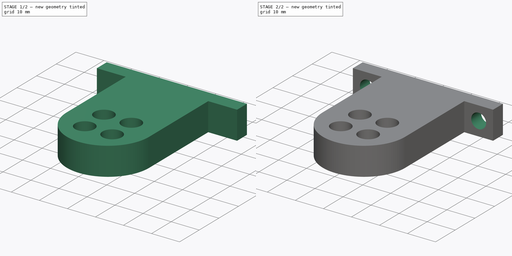
[diagram: build sequence overview — one tinted view per stage of 2, left to right]
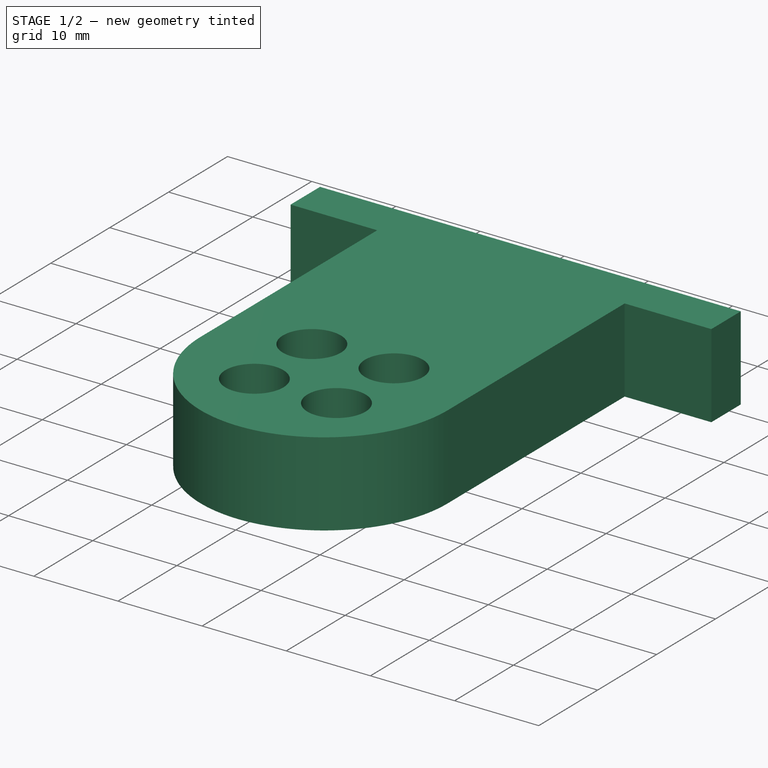
[diagram: stage 1 of 2 — iso view after this stage's code; geometry added in this stage tinted green]
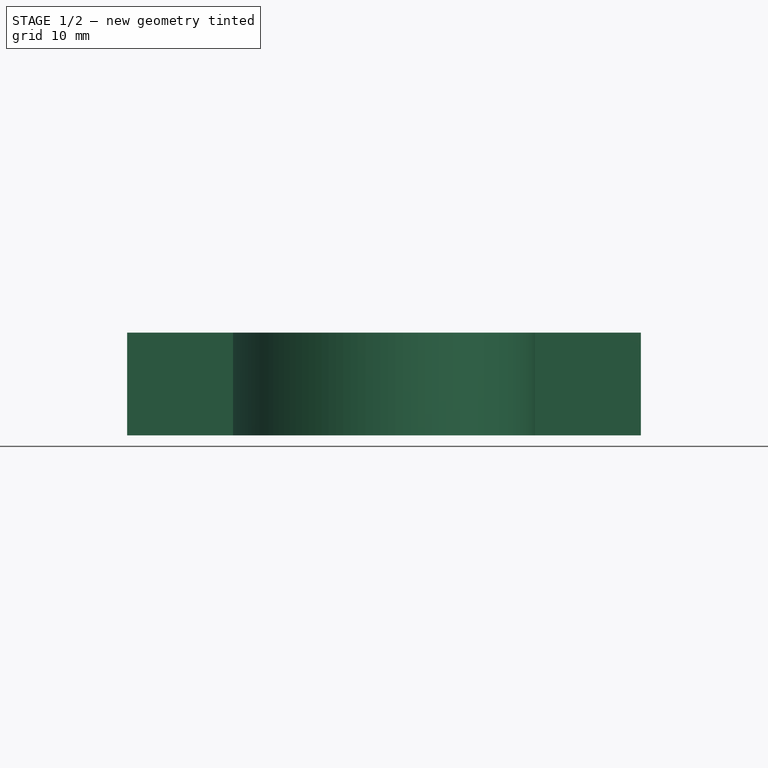
[diagram: stage 1 of 2 — front view after this stage's code; geometry added in this stage tinted green]
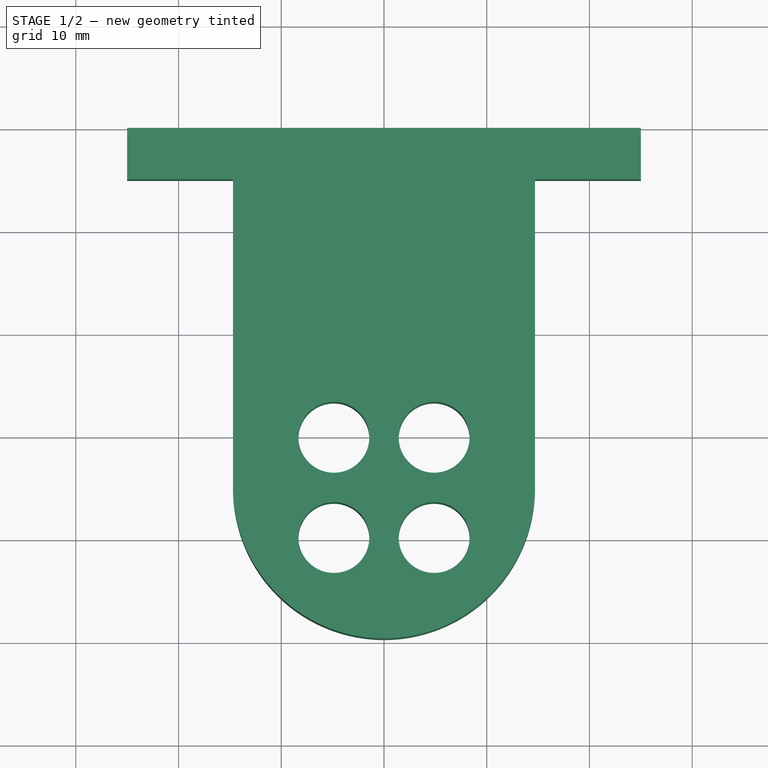
[diagram: stage 1 of 2 — top view after this stage's code; geometry added in this stage tinted green]
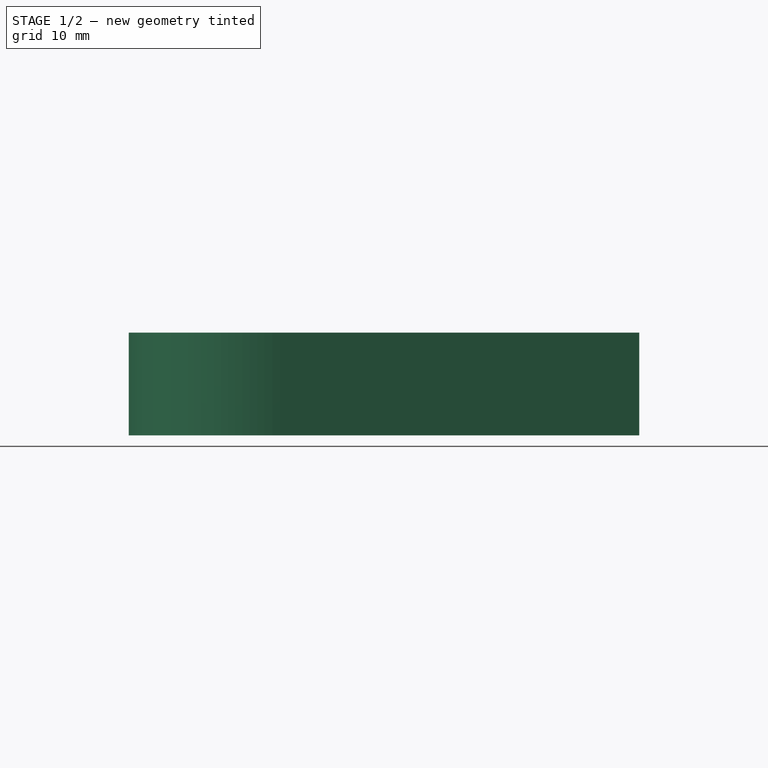
[diagram: stage 1 of 2 — right view after this stage's code; geometry added in this stage tinted green]
FCSTD DOCUMENT  (FreeCAD 1.0R39109 (Git))
Label: Tube holder
License: All rights reserved
LicenseURL: http://en.wikipedia.org/wiki/All_rights_reserved
objects: Sketcher::SketchObject×2, PartDesign::Pad×1, Spreadsheet::Sheet×1, PartDesign::Hole×1, PartDesign::Body×1
note: 11 computed .brp shape members not serialized (recipe doc carries the construction recipe); baked Part::Feature solids carry a one-line shape summary decoded from their .brp

FEATURE [Sketcher::SketchObject] Sketch
  ArcFitTolerance = 0
  AttachmentSupport = -> [XY_Plane]
  FullyConstrained = true
  MakeInternals = false
  MapMode = 5
  expr: .Constraints.mountingwidth = 5
  expr: .Constraints.width = .Constraints.widthtubepart + 5.3 mm * 2 + 10 mm
  sketch-geometry (18):
    g0: ArcOfCircle CenterX=4e-16 CenterY=-35 CenterZ=0 NormalX=0 NormalY=0 NormalZ=1 AngleXU=0 Radius=14.7 StartAngle=3.14159 EndAngle=6.28319
    g1: LineSegment StartX=14.7 StartY=-35 StartZ=0 EndX=14.7 EndY=-5 EndZ=0
    g2: LineSegment StartX=-14.7 StartY=-5 StartZ=0 EndX=-14.7 EndY=-35 EndZ=0
    g3: LineSegment StartX=-25 StartY=2e-16 StartZ=0 EndX=-25 EndY=-5 EndZ=0
    g4: LineSegment StartX=-25 StartY=-5 StartZ=0 EndX=-14.7 EndY=-5 EndZ=0
    g5: LineSegment StartX=25 StartY=-2e-16 StartZ=0 EndX=25 EndY=-5 EndZ=0
    g6: LineSegment StartX=25 StartY=-5 StartZ=0 EndX=14.7 EndY=-5 EndZ=0
    g7: LineSegment [constr] StartX=-4.87904 StartY=-39.879 StartZ=0 EndX=-4.87904 EndY=-30.121 EndZ=0
    g8: LineSegment [constr] StartX=-4.87904 StartY=-30.121 StartZ=0 EndX=4.87904 EndY=-30.121 EndZ=0
    g9: LineSegment [constr] StartX=4.87904 StartY=-30.121 StartZ=0 EndX=4.87904 EndY=-39.879 EndZ=0
    g10: LineSegment [constr] StartX=4.87904 StartY=-39.879 StartZ=0 EndX=-4.87904 EndY=-39.879 EndZ=0
    g11: GeomPoint X=4e-16 Y=-35 Z=0
    g12: Circle CenterX=-4.87904 CenterY=-30.121 CenterZ=0 NormalX=0 NormalY=0 NormalZ=1 AngleXU=0 Radius=3.45
    g13: Circle CenterX=4.87904 CenterY=-30.121 CenterZ=0 NormalX=0 NormalY=0 NormalZ=1 AngleXU=0 Radius=3.45
    g14: Circle CenterX=4.87904 CenterY=-39.879 CenterZ=0 NormalX=0 NormalY=0 NormalZ=1 AngleXU=0 Radius=3.45
    g15: Circle CenterX=-4.87904 CenterY=-39.879 CenterZ=0 NormalX=0 NormalY=0 NormalZ=1 AngleXU=0 Radius=3.45
    g16: Circle [constr] CenterX=4e-16 CenterY=-35 CenterZ=0 NormalX=0 NormalY=0 NormalZ=1 AngleXU=0 Radius=3.45
    g17: LineSegment StartX=-25 StartY=2e-16 StartZ=0 EndX=25 EndY=-2e-16 EndZ=0
  constraints (46):
    c: Tangent(g0,g1) = -1.5708
    c: Tangent(g2,g0) = -1.5708
    c: Vertical(g1)
    c: Coincident(g3,g4)
    c: Horizontal(g4)
    c: Vertical(g3)
    c: Coincident(g5,g6)
    c: Horizontal(g6)
    c: Vertical(g5)
    c: PointOnObject(g2,g4)
    c: PointOnObject(g1,g6)
    c: Equal(g5,g3)
    c: Equal(g4,g6)
    c: DistanceY(g5,g5) = 5  'mountingwidth'
    c: PointOnObject(g6,g1)
    c: PointOnObject(g4,g2)
    c: DistanceX(g3,g5) = 50  'width'
    c: Vertical(g2)
    c: Symmetric(g2,g1,g-2)
    c: Coincident(g7,g8)
    c: Coincident(g8,g9)
    c: Coincident(g9,g10)
    c: Coincident(g10,g7)
    c: Horizontal(g8)
    c: Horizontal(g10)
    c: Vertical(g7)
    c: Vertical(g9)
    c: Symmetric(g8,g7,g11)
    c: Equal(g7,g8)
    c: Coincident(g12,g7)
    c: Coincident(g13,g8)
    c: Coincident(g14,g9)
    c: Coincident(g15,g7)
    c: Equal(g15,g12)
    c: Equal(g12,g13)
    c: Equal(g13,g14)
    c: Diameter(g12) = 6.9
    c: Coincident(g16,g11)
    c: Tangent(g16,g13)
    c: Equal(g16,g13)
    c: Coincident(g11,g0)
    c: DistanceY(g0,g-1) = 35
    c: DistanceX(g2,g6) = 29.4  'widthtubepart'
    c: Coincident(g17,g3)
    c: Coincident(g17,g5)
    c: PointOnObject(g-1,g17)
FEATURE [PartDesign::Pad] Pad
  Direction = (0,0,1)
  Length = 10
  Length2 = 10
  Midplane = true
  Profile = -> Sketch
  ReferenceAxis = -> Sketch [N_Axis]
  Suppressed = false
  Type = 0
  expr: Length = Spreadsheet.Thickness
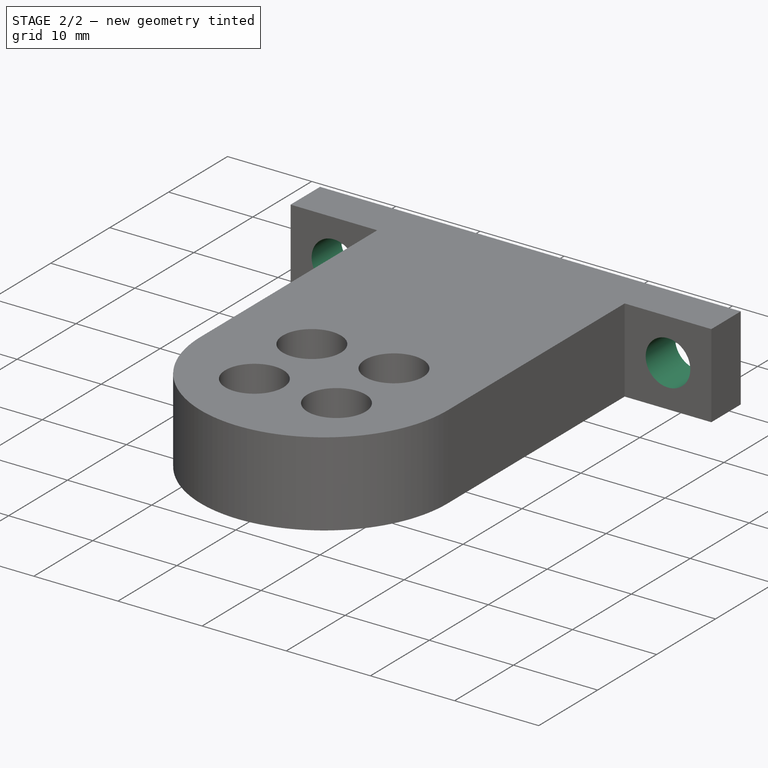
[diagram: stage 2 of 2 — iso view after this stage's code; geometry added in this stage tinted green]
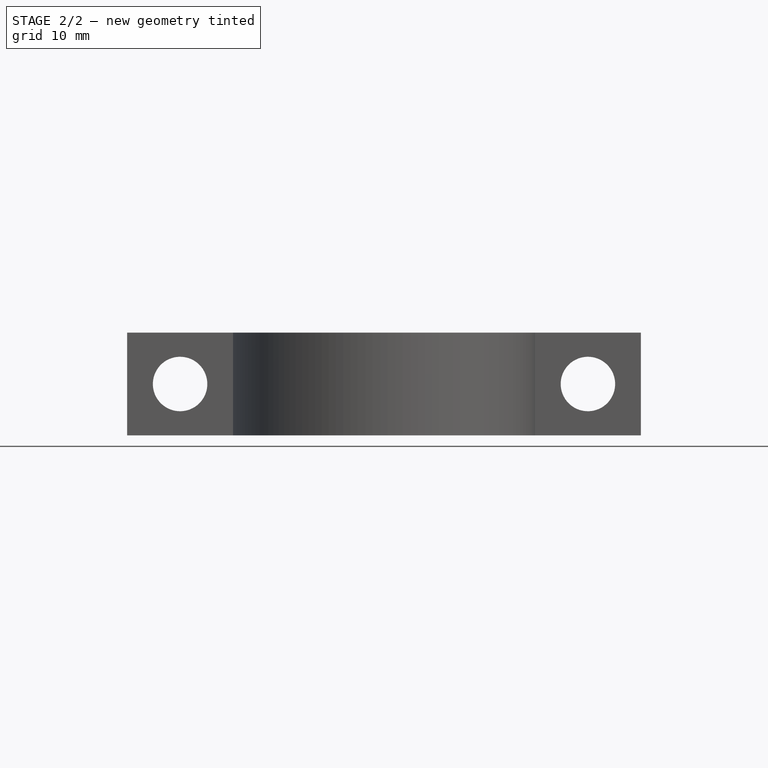
[diagram: stage 2 of 2 — front view after this stage's code; geometry added in this stage tinted green]
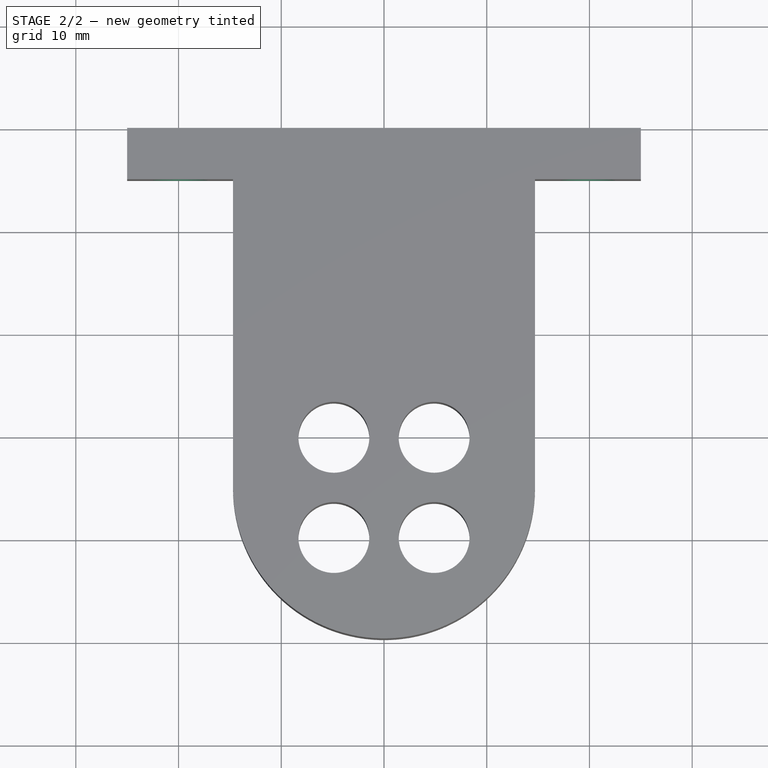
[diagram: stage 2 of 2 — top view after this stage's code; geometry added in this stage tinted green]
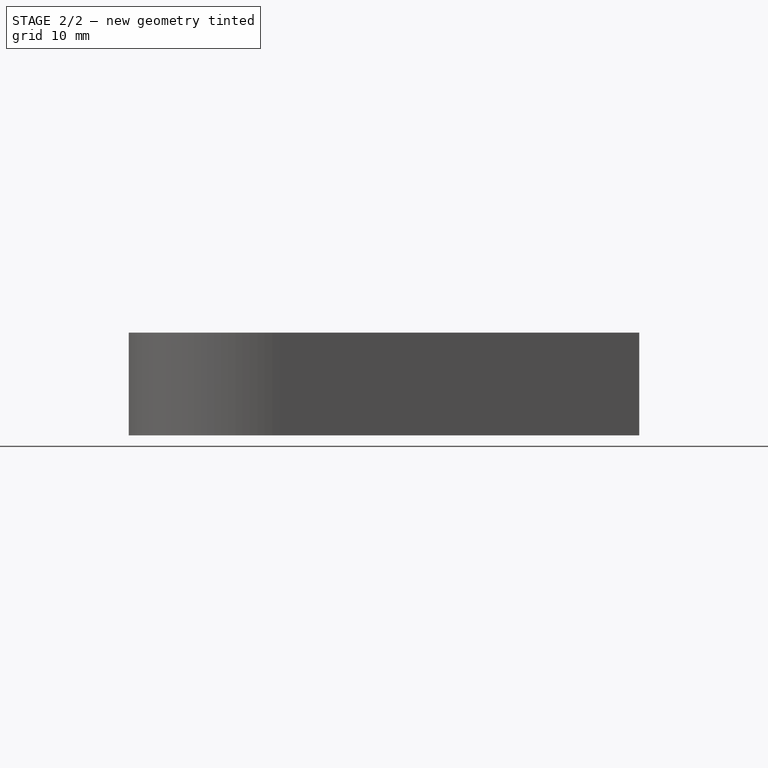
[diagram: stage 2 of 2 — right view after this stage's code; geometry added in this stage tinted green]
FEATURE [Spreadsheet::Sheet] Spreadsheet
  cells = A1='ClampWidth; B1(ClampWidth)=50; A2='Walls; B2(Walls)=3; A3='Thickness; B3(Thickness)=10; A4='CircleInner; B4(CircleInner)=25
FEATURE [Sketcher::SketchObject] Sketch001
  ArcFitTolerance = 1e-06
  AttachmentOffset = pos=(0,0,5) rot=(0,0,1;0rad)
  AttachmentSupport = -> [XZ_Plane]
  FullyConstrained = false
  MakeInternals = false
  MapMode = 5
  Placement = pos=(0,-5,1.1e-15) rot=(1,0,0;1.5708rad)
  expr: .AttachmentOffset.Base.z = Sketch.Constraints.mountingwidth
  expr: Constraints[1] = Sketch.Constraints.widthtubepart + (Sketch.Constraints.width - Sketch.Constraints.widthtubepart) / 2
  sketch-geometry (2):
    g0: Circle CenterX=-19.85 CenterY=0 CenterZ=0 NormalX=0 NormalY=0 NormalZ=1 AngleXU=0 Radius=3.67838
    g1: Circle CenterX=19.85 CenterY=0 CenterZ=0 NormalX=0 NormalY=0 NormalZ=1 AngleXU=0 Radius=3.53993
  constraints (3):
    c: Symmetric(g1,g0,g-2)
    c: DistanceX(g0,g1) = 39.7
    c: PointOnObject(g1,g-1)
FEATURE [PartDesign::Hole] Hole
  BaseFeature = -> Pad
  CustomThreadClearance = 0
  Depth = 140.767
  DepthType = 1
  Diameter = 5.3
  DrillForDepth = false
  DrillPoint = 1
  DrillPointAngle = 118
  HoleCutCountersinkAngle = 90
  HoleCutCustomValues = false
  HoleCutDepth = 0
  HoleCutDiameter = 6.1
  HoleCutType = 0
  ModelThread = false
  Profile = -> Sketch001
  Refine = true
  Suppressed = false
  Tapered = false
  TaperedAngle = 90
  ThreadClass = 0
  ThreadDepth = 140.767
  ThreadDepthType = 0
  ThreadDirection = 0
  ThreadFit = 0
  ThreadSize = 0
  ThreadType = 0
  Threaded = false
  UseCustomThreadClearance = false
FEATURE [PartDesign::Body] Body  label="Body 1"
  AllowCompound = false
  Group = -> [Sketch,Pad,Sketch001,Hole]
  Origin = -> Origin
  Tip = -> Hole
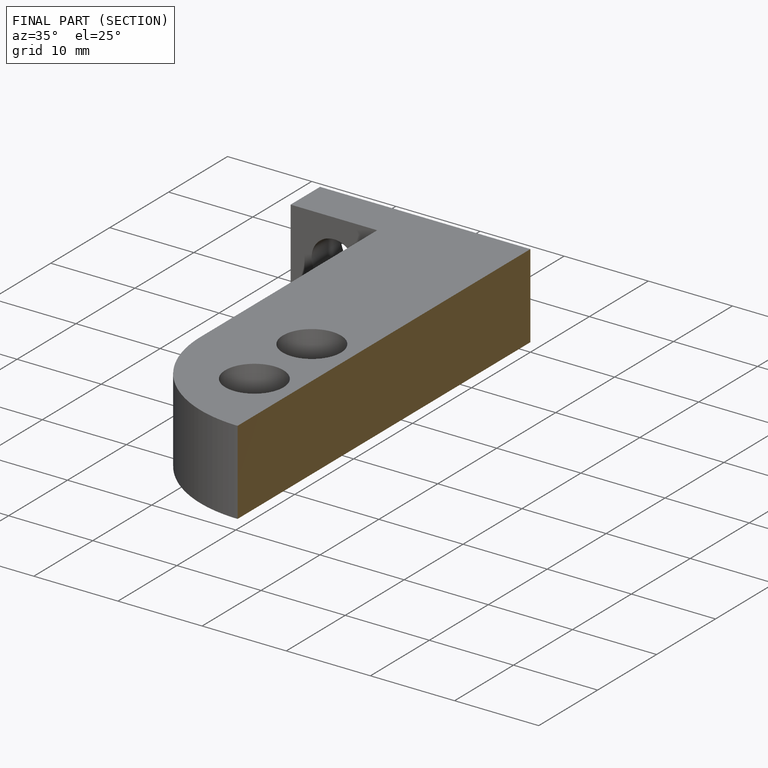
[diagram: finished part — half-section view (interior)]
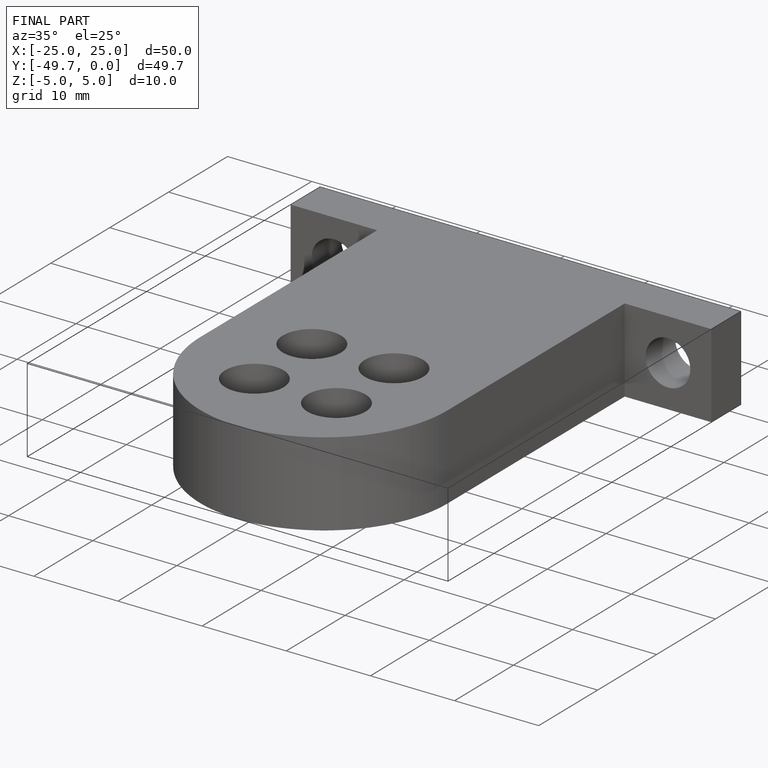
[diagram: finished part — iso view with bounding-box wireframe]
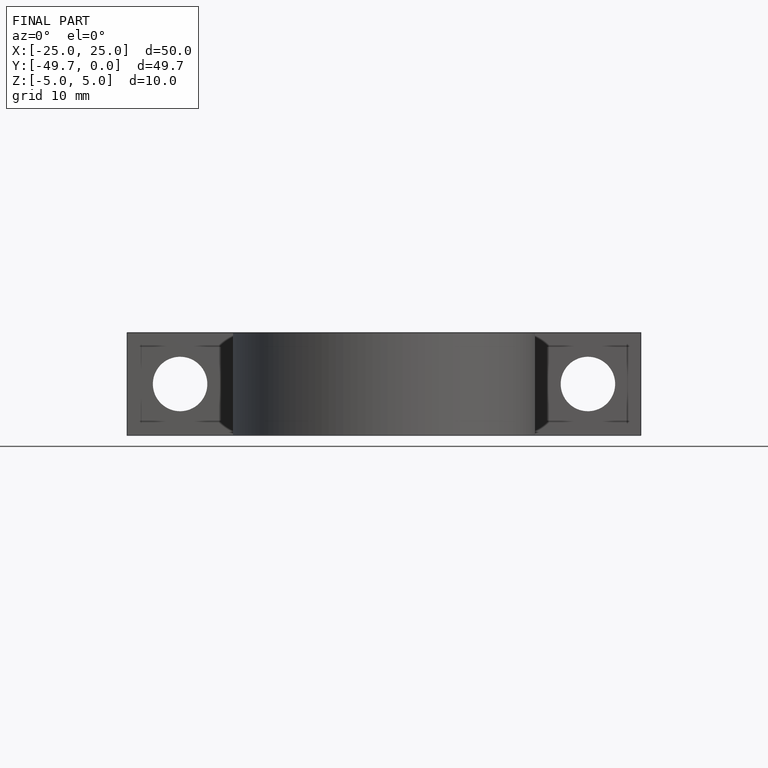
[diagram: finished part — front view with bounding-box wireframe]
